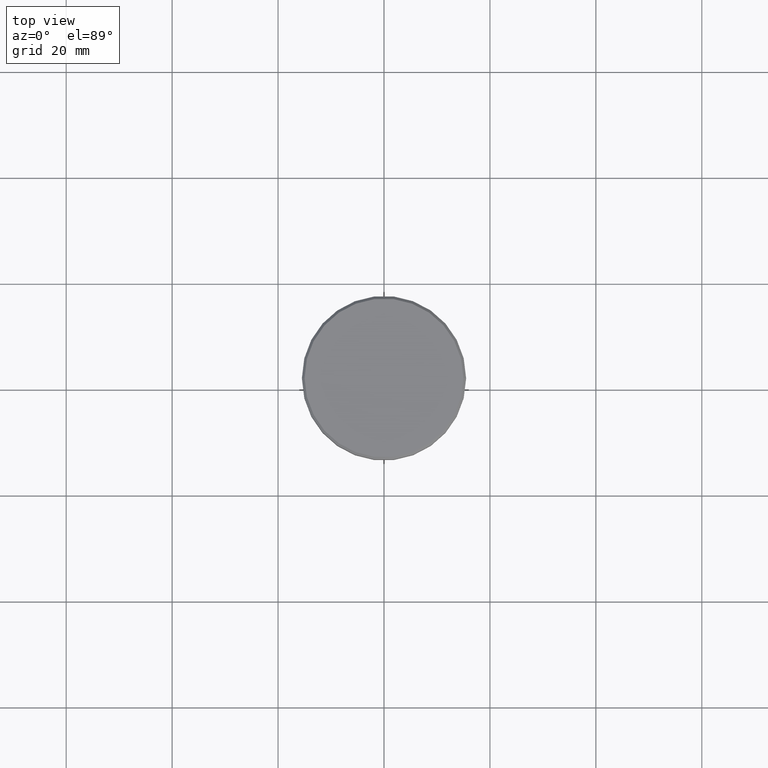
[diagram: clean part render]
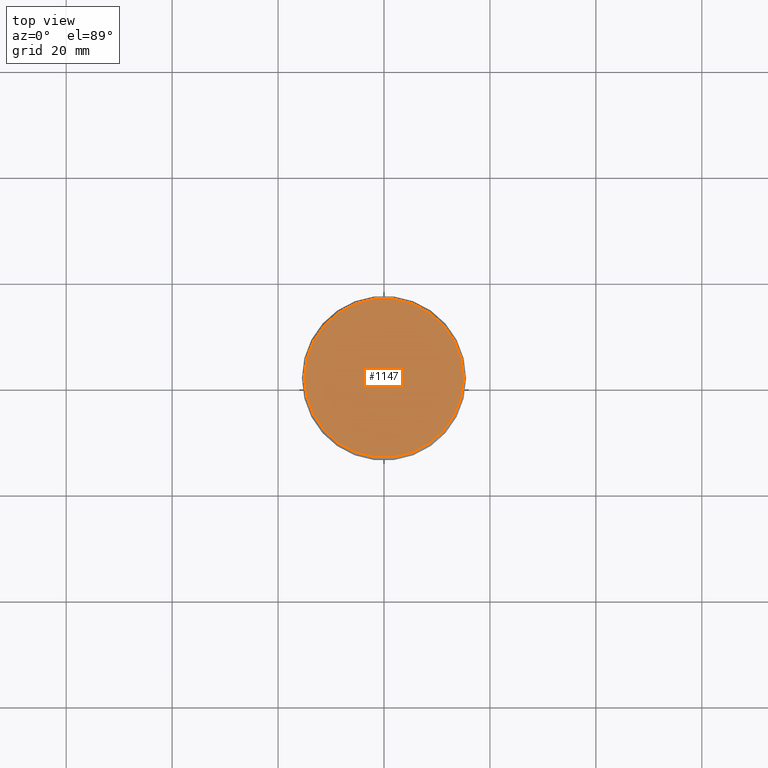
[diagram: same view with one face highlighted and labeled with its STEP entity id]
A machine part, top view. The second image highlights one B-rep face of the part: STEP entity #1147.
In plain terms, the highlighted planar face has unit normal (0, -0, 1).
Its self-contained STEP definition (entity closure, byte-faithful):
#1 = CARTESIAN_POINT ( 'NONE',  ( -15.00000000000002665, 0.000000000000000000, 0.000000000000000000 ) ) ;
#42 = ORIENTED_EDGE ( 'NONE', *, *, #1072, .T. ) ;
#56 = EDGE_CURVE ( 'NONE', #1112, #765, #510, .T. ) ;
#98 = DIRECTION ( 'NONE',  ( 0.000000000000000000, -0.000000000000000000, 1.000000000000000000 ) ) ;
#152 = AXIS2_PLACEMENT_3D ( 'NONE', #876, #444, #1067 ) ;
#177 = CARTESIAN_POINT ( 'NONE',  ( 15.00000000000002665, 1.867586368699715348E-15, 0.000000000000000000 ) ) ;
#275 = PLANE ( 'NONE',  #721 ) ;
#278 = ORIENTED_EDGE ( 'NONE', *, *, #56, .T. ) ;
#363 = DIRECTION ( 'NONE',  ( 1.000000000000000000, 0.000000000000000000, 0.000000000000000000 ) ) ;
#444 = DIRECTION ( 'NONE',  ( -0.000000000000000000, -0.000000000000000000, 1.000000000000000000 ) ) ;
#456 = FACE_OUTER_BOUND ( 'NONE', #823, .T. ) ;
#497 = AXIS2_PLACEMENT_3D ( 'NONE', #508, #889, #1175 ) ;
#508 = CARTESIAN_POINT ( 'NONE',  ( 0.000000000000000000, 0.000000000000000000, 0.000000000000000000 ) ) ;
#510 = CIRCLE ( 'NONE', #497, 15.00000000000002665 ) ;
#688 = CIRCLE ( 'NONE', #152, 15.00000000000002665 ) ;
#721 = AXIS2_PLACEMENT_3D ( 'NONE', #1173, #98, #363 ) ;
#765 = VERTEX_POINT ( 'NONE', #1 ) ;
#823 = EDGE_LOOP ( 'NONE', ( #42, #278 ) ) ;
#876 = CARTESIAN_POINT ( 'NONE',  ( 0.000000000000000000, 0.000000000000000000, 0.000000000000000000 ) ) ;
#889 = DIRECTION ( 'NONE',  ( -0.000000000000000000, -0.000000000000000000, 1.000000000000000000 ) ) ;
#1067 = DIRECTION ( 'NONE',  ( 1.000000000000000000, 0.000000000000000000, 0.000000000000000000 ) ) ;
#1072 = EDGE_CURVE ( 'NONE', #765, #1112, #688, .T. ) ;
#1112 = VERTEX_POINT ( 'NONE', #177 ) ;
#1147 = ADVANCED_FACE ( 'NONE', ( #456 ), #275, .T. ) ;
#1173 = CARTESIAN_POINT ( 'NONE',  ( 0.000000000000000000, 0.000000000000000000, 0.000000000000000000 ) ) ;
#1175 = DIRECTION ( 'NONE',  ( 1.000000000000000000, 0.000000000000000000, 0.000000000000000000 ) ) ;